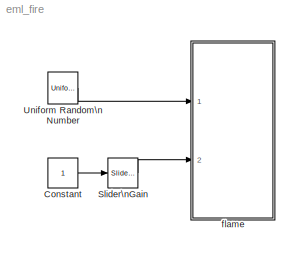
MODEL eml_fire
KIND model
CONFIG PreLoadFcn = %load mtlb;\n\nFs = 8000;
BLOCK [Constant] Constant
BLOCK [Reference] Slider\nGain  REF=simulink/Math\nOperations/Slider\nGain
  Ports = [1, 1]
  ShowPortLabels = on
  SourceBlock = simulink/Math\nOperations/Slider\nGain
  SourceType = Slider Gain
  gain = 0.6544
  high = 1
  low = 0
BLOCK [UniformRandomNumber] Uniform Random\nNumber
  Minimum = 0
  SampleTime = 0
  Seed = floor(rand(1,256) * 4560458)
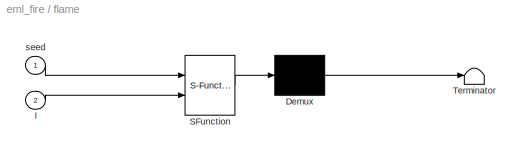
BLOCK [SubSystem] flame
  MaskDescription = Stateflow diagram
  MaskDisplay = disp('flame');
  MaskIconFrame = on
  MaskIconOpaque = off
  MaskIconRotate = none
  MaskIconUnits = autoscale
  MaskSelfModifiable = on
  MaskType = Stateflow
  MinAlgLoopOccurrences = off
  Ports = [2]
  PropExecContextAcrossSSBoundary = on
  RTWSystemCode = Auto
  TreatAsAtomicUnit = off
BLOCK [Demux] flame/ Demux 
  Outputs = 1
  Ports = [1, 1]
BLOCK [S-Function] flame/ SFunction 
  FunctionName = sf_sfun
  PortCounts = [2 1]
  Ports = [2, 1]
  Tag = Stateflow S-Function eml_fire 3
BLOCK [Terminator] flame/ Terminator 
BLOCK [Inport] flame/I
  IconDisplay = Port number
  LatchInput = off
  Port = 2
BLOCK [Inport] flame/seed
  IconDisplay = Port number
  LatchInput = off
  Port = 1
LINE Constant:1 -> Slider\nGain:1
LINE Slider\nGain:1 -> flame:2
LINE Uniform Random\nNumber:1 -> flame:1
LINE flame/ Demux :1 -> flame/ Terminator :1
LINE flame/ SFunction :1 -> flame/ Demux :1
LINE flame/I:1 -> flame/ SFunction :2
LINE flame/seed:1 -> flame/ SFunction :1
CHART flame states=1 transitions=1
  STATE_LABEL 'eML_blk_kernel()'
